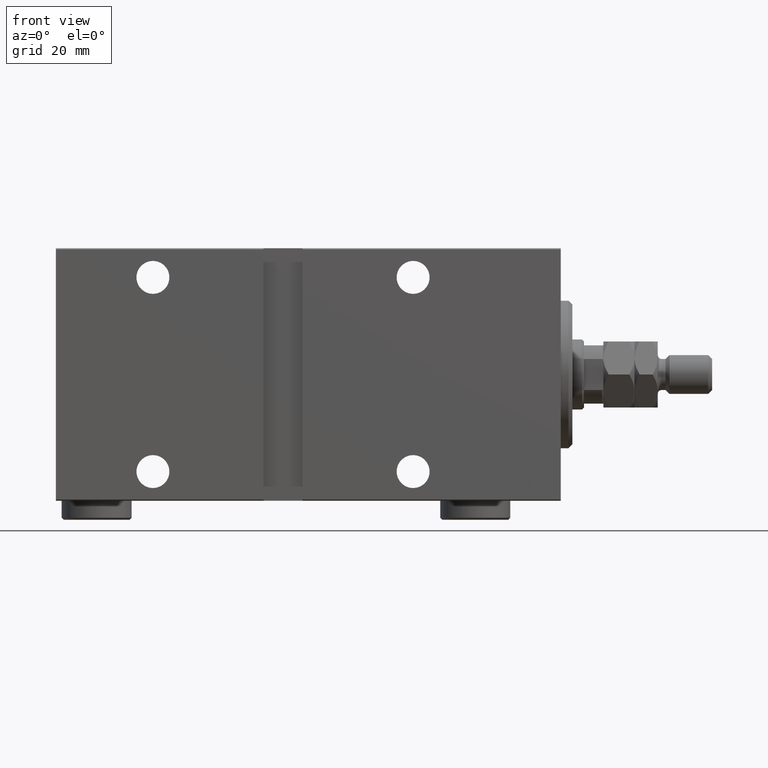
[diagram: clean part render]
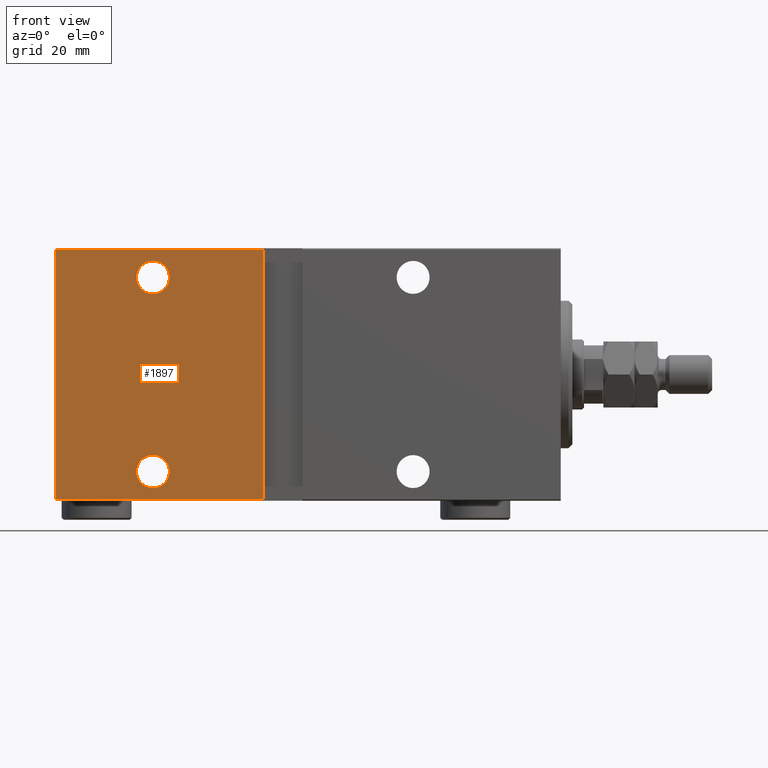
[diagram: same view with one face highlighted and labeled with its STEP entity id]
A machine part, front view. The second image highlights one B-rep face of the part: STEP entity #1897.
In plain terms, the highlighted planar face has unit normal (-0, 1, -0).
Its self-contained STEP definition (entity closure, byte-faithful):
#476 = CARTESIAN_POINT ( 'NONE',  ( 105.0000000000000142, 22.50000000000000355, -20.75000000000000355 ) ) ;
#1409 = DIRECTION ( 'NONE',  ( -0.000000000000000000, 1.067522139062648576E-16, -1.000000000000000000 ) ) ;
#1528 = VERTEX_POINT ( 'NONE', #32271 ) ;
#1897 = ADVANCED_FACE ( 'NONE', ( #25910, #25681, #36414 ), #43848, .F. ) ;
#2026 = EDGE_LOOP ( 'NONE', ( #18156, #27784, #14629, #32859 ) ) ;
#3655 = ORIENTED_EDGE ( 'NONE', *, *, #17280, .T. ) ;
#4719 = AXIS2_PLACEMENT_3D ( 'NONE', #24420, #35607, #21396 ) ;
#5283 = CARTESIAN_POINT ( 'NONE',  ( 130.0000000000000000, 22.49999999999999645, 32.20000000000000284 ) ) ;
#6058 = CARTESIAN_POINT ( 'NONE',  ( 105.0000000000000142, 22.49999999999999645, 24.99999999999999645 ) ) ;
#6308 = EDGE_CURVE ( 'NONE', #24931, #1528, #41888, .T. ) ;
#6834 = DIRECTION ( 'NONE',  ( 0.000000000000000000, -1.000000000000000000, -1.067522139062650425E-16 ) ) ;
#7636 = EDGE_CURVE ( 'NONE', #35676, #17158, #22506, .T. ) ;
#7746 = CARTESIAN_POINT ( 'NONE',  ( 105.0000000000000142, 22.50000000000000355, -25.00000000000000711 ) ) ;
#9322 = CARTESIAN_POINT ( 'NONE',  ( 130.0000000000000000, 22.50000000000000355, -32.19999999999999574 ) ) ;
#10550 = CARTESIAN_POINT ( 'NONE',  ( 105.0000000000000142, 22.50000000000000355, -25.00000000000000711 ) ) ;
#12551 = AXIS2_PLACEMENT_3D ( 'NONE', #6058, #34435, #23052 ) ;
#12738 = ORIENTED_EDGE ( 'NONE', *, *, #33535, .T. ) ;
#13139 = CARTESIAN_POINT ( 'NONE',  ( 76.50000000000000000, 22.50000000000000355, -32.19999999999999574 ) ) ;
#14608 = VECTOR ( 'NONE', #40289, 1000.000000000000000 ) ;
#14629 = ORIENTED_EDGE ( 'NONE', *, *, #45551, .F. ) ;
#15211 = CARTESIAN_POINT ( 'NONE',  ( 130.0000000000000000, 22.50000000000000355, -32.50000000000000000 ) ) ;
#15478 = DIRECTION ( 'NONE',  ( -1.000000000000000000, 0.000000000000000000, 0.000000000000000000 ) ) ;
#15939 = EDGE_LOOP ( 'NONE', ( #23612, #25058 ) ) ;
#16452 = LINE ( 'NONE', #40272, #32939 ) ;
#17158 = VERTEX_POINT ( 'NONE', #5283 ) ;
#17280 = EDGE_CURVE ( 'NONE', #28554, #17281, #42826, .T. ) ;
#17281 = VERTEX_POINT ( 'NONE', #35445 ) ;
#17703 = VERTEX_POINT ( 'NONE', #34413 ) ;
#18156 = ORIENTED_EDGE ( 'NONE', *, *, #7636, .F. ) ;
#18387 = AXIS2_PLACEMENT_3D ( 'NONE', #10550, #6834, #20565 ) ;
#18967 = LINE ( 'NONE', #33159, #28739 ) ;
#20508 = AXIS2_PLACEMENT_3D ( 'NONE', #7746, #21698, #42897 ) ;
#20565 = DIRECTION ( 'NONE',  ( 0.000000000000000000, 0.000000000000000000, -1.000000000000000000 ) ) ;
#21396 = DIRECTION ( 'NONE',  ( 0.000000000000000000, 0.000000000000000000, -1.000000000000000000 ) ) ;
#21698 = DIRECTION ( 'NONE',  ( 0.000000000000000000, -1.000000000000000000, -1.067522139062650425E-16 ) ) ;
#22365 = CARTESIAN_POINT ( 'NONE',  ( 130.0000000000000000, 22.49999999999999645, 32.20000000000000284 ) ) ;
#22506 = LINE ( 'NONE', #36484, #23339 ) ;
#23052 = DIRECTION ( 'NONE',  ( 0.000000000000000000, 0.000000000000000000, -1.000000000000000000 ) ) ;
#23339 = VECTOR ( 'NONE', #43923, 1000.000000000000000 ) ;
#23612 = ORIENTED_EDGE ( 'NONE', *, *, #24890, .T. ) ;
#24420 = CARTESIAN_POINT ( 'NONE',  ( 105.0000000000000142, 22.49999999999999645, 24.99999999999999645 ) ) ;
#24890 = EDGE_CURVE ( 'NONE', #1528, #24931, #37077, .T. ) ;
#24931 = VERTEX_POINT ( 'NONE', #37256 ) ;
#25058 = ORIENTED_EDGE ( 'NONE', *, *, #6308, .T. ) ;
#25605 = LINE ( 'NONE', #22365, #14608 ) ;
#25681 = FACE_BOUND ( 'NONE', #15939, .T. ) ;
#25910 = FACE_BOUND ( 'NONE', #34382, .T. ) ;
#27784 = ORIENTED_EDGE ( 'NONE', *, *, #31650, .T. ) ;
#28554 = VERTEX_POINT ( 'NONE', #476 ) ;
#28739 = VECTOR ( 'NONE', #15478, 1000.000000000000000 ) ;
#29396 = DIRECTION ( 'NONE',  ( 0.000000000000000000, 1.067522139062650425E-16, -1.000000000000000000 ) ) ;
#29637 = DIRECTION ( 'NONE',  ( 0.000000000000000000, -1.000000000000000000, -1.067522139062650425E-16 ) ) ;
#31650 = EDGE_CURVE ( 'NONE', #35676, #31796, #18967, .T. ) ;
#31796 = VERTEX_POINT ( 'NONE', #13139 ) ;
#32271 = CARTESIAN_POINT ( 'NONE',  ( 105.0000000000000142, 22.49999999999999645, 29.25000000000000000 ) ) ;
#32859 = ORIENTED_EDGE ( 'NONE', *, *, #35621, .T. ) ;
#32939 = VECTOR ( 'NONE', #1409, 1000.000000000000000 ) ;
#33159 = CARTESIAN_POINT ( 'NONE',  ( 130.0000000000000000, 22.50000000000000355, -32.19999999999999574 ) ) ;
#33535 = EDGE_CURVE ( 'NONE', #17281, #28554, #39849, .T. ) ;
#34382 = EDGE_LOOP ( 'NONE', ( #3655, #12738 ) ) ;
#34413 = CARTESIAN_POINT ( 'NONE',  ( 76.50000000000000000, 22.49999999999999645, 32.20000000000000284 ) ) ;
#34435 = DIRECTION ( 'NONE',  ( 0.000000000000000000, -1.000000000000000000, -1.067522139062650425E-16 ) ) ;
#35445 = CARTESIAN_POINT ( 'NONE',  ( 105.0000000000000142, 22.50000000000000355, -29.25000000000001066 ) ) ;
#35607 = DIRECTION ( 'NONE',  ( 0.000000000000000000, -1.000000000000000000, -1.067522139062650425E-16 ) ) ;
#35621 = EDGE_CURVE ( 'NONE', #17703, #17158, #25605, .T. ) ;
#35676 = VERTEX_POINT ( 'NONE', #9322 ) ;
#36414 = FACE_OUTER_BOUND ( 'NONE', #2026, .T. ) ;
#36484 = CARTESIAN_POINT ( 'NONE',  ( 130.0000000000000000, 22.50000000000000355, -32.50000000000000000 ) ) ;
#37077 = CIRCLE ( 'NONE', #12551, 4.250000000000003553 ) ;
#37256 = CARTESIAN_POINT ( 'NONE',  ( 105.0000000000000142, 22.49999999999999645, 20.74999999999999289 ) ) ;
#38037 = AXIS2_PLACEMENT_3D ( 'NONE', #15211, #29637, #29396 ) ;
#39849 = CIRCLE ( 'NONE', #18387, 4.250000000000003553 ) ;
#40272 = CARTESIAN_POINT ( 'NONE',  ( 76.50000000000000000, 22.50000000000000355, -32.50000000000009948 ) ) ;
#40289 = DIRECTION ( 'NONE',  ( 1.000000000000000000, 0.000000000000000000, 0.000000000000000000 ) ) ;
#41888 = CIRCLE ( 'NONE', #4719, 4.250000000000003553 ) ;
#42826 = CIRCLE ( 'NONE', #20508, 4.250000000000003553 ) ;
#42897 = DIRECTION ( 'NONE',  ( 0.000000000000000000, 0.000000000000000000, -1.000000000000000000 ) ) ;
#43848 = PLANE ( 'NONE',  #38037 ) ;
#43923 = DIRECTION ( 'NONE',  ( 0.000000000000000000, -1.067522139062650425E-16, 1.000000000000000000 ) ) ;
#45551 = EDGE_CURVE ( 'NONE', #17703, #31796, #16452, .T. ) ;